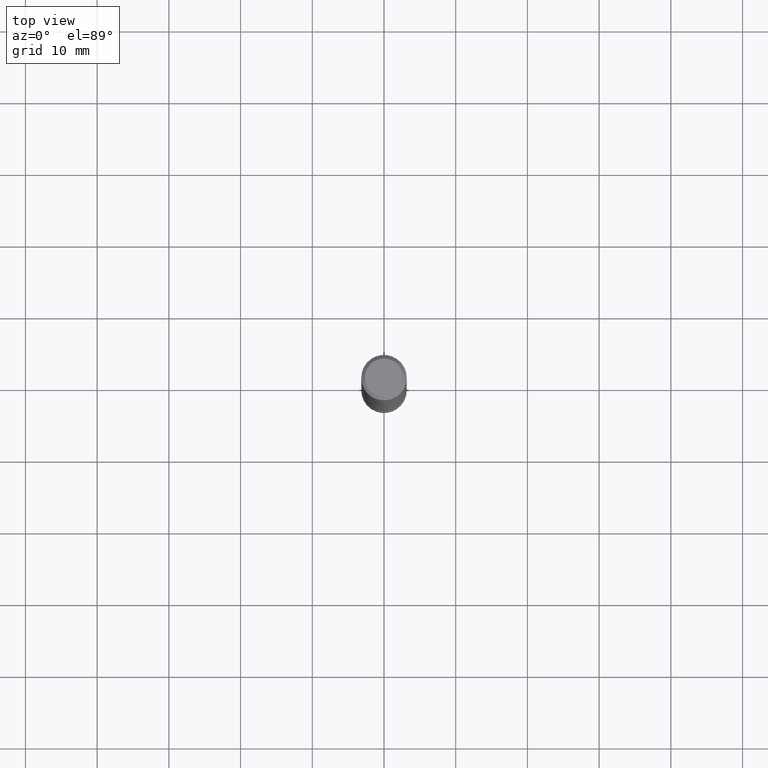
[diagram: clean part render]
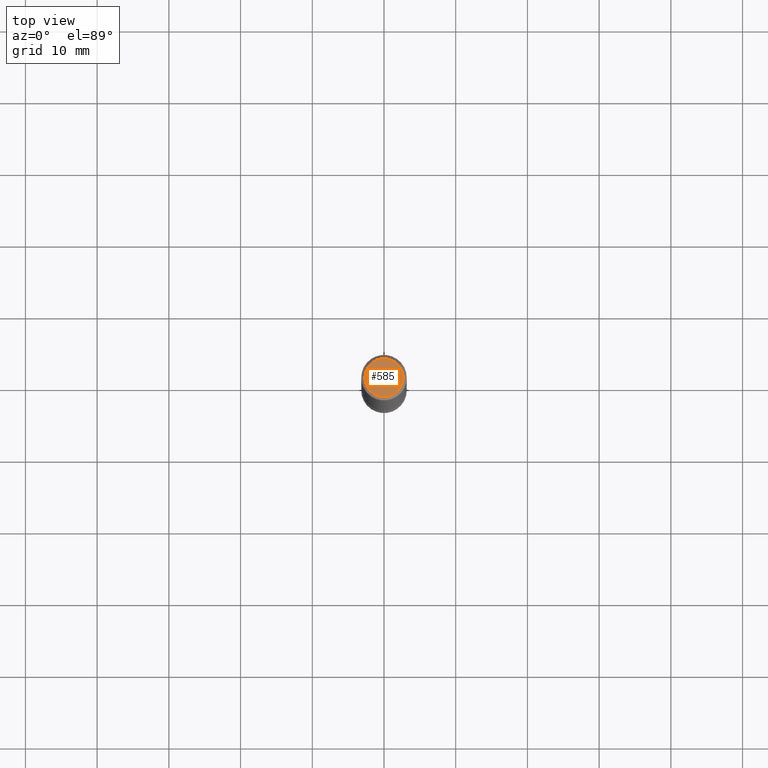
[diagram: same view with one face highlighted and labeled with its STEP entity id]
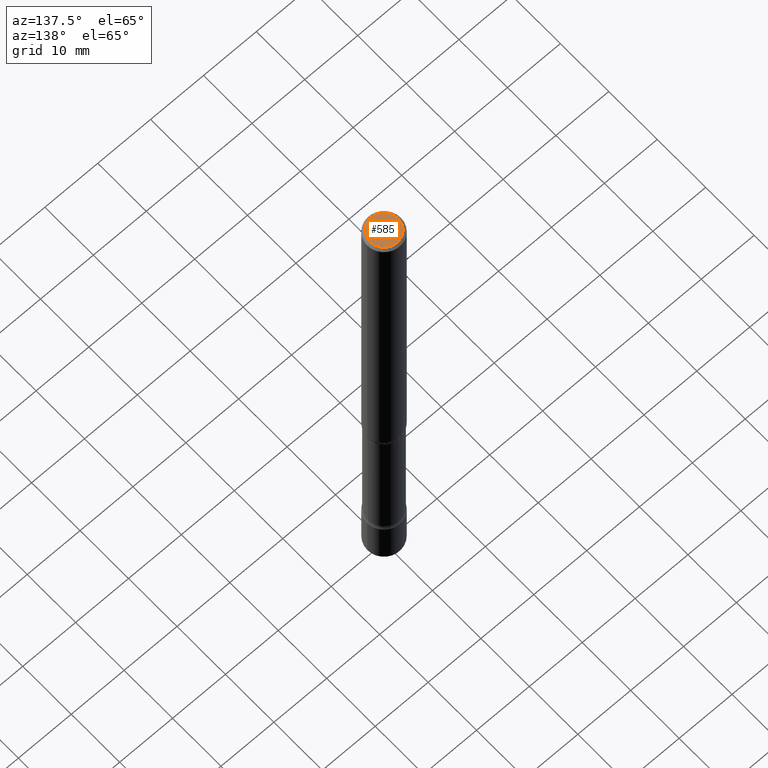
[diagram: same view with one face highlighted and labeled with its STEP entity id]
A machine part, top view. The second image highlights one B-rep face of the part: STEP entity #585.
A second angle (auxiliary view) of the same face is appended — the face is thin or edge-on in the first view.
In plain terms, the highlighted planar face has unit normal (0, -0, -1).
Its self-contained STEP definition (entity closure, byte-faithful):
#21 = EDGE_LOOP ( 'NONE', ( #60, #621 ) ) ;
#60 = ORIENTED_EDGE ( 'NONE', *, *, #86, .T. ) ;
#86 = EDGE_CURVE ( 'NONE', #106, #679, #637, .T. ) ;
#106 = VERTEX_POINT ( 'NONE', #758 ) ;
#193 = EDGE_CURVE ( 'NONE', #679, #106, #614, .T. ) ;
#197 = FACE_OUTER_BOUND ( 'NONE', #21, .T. ) ;
#203 = CARTESIAN_POINT ( 'NONE',  ( 7.332110811570555591E-16, 0.1049999999999996630, -3.644712843334789467E-16 ) ) ;
#216 = CARTESIAN_POINT ( 'NONE',  ( 0.1049999999999996630, -8.238720831321552978E-16, 4.268512490105855498E-18 ) ) ;
#293 = AXIS2_PLACEMENT_3D ( 'NONE', #527, #397, #707 ) ;
#310 = AXIS2_PLACEMENT_3D ( 'NONE', #608, #419, #787 ) ;
#328 = DIRECTION ( 'NONE',  ( 2.438088387897960049E-29, -3.491481338843145188E-15, -1.000000000000000000 ) ) ;
#397 = DIRECTION ( 'NONE',  ( -2.445468806185136597E-29, 3.491481338843145583E-15, 1.000000000000000000 ) ) ;
#419 = DIRECTION ( 'NONE',  ( -2.445468806185136597E-29, 3.491481338843145583E-15, 1.000000000000000000 ) ) ;
#442 = AXIS2_PLACEMENT_3D ( 'NONE', #203, #328, #701 ) ;
#527 = CARTESIAN_POINT ( 'NONE',  ( -1.043851414335219820E-46, 1.490343170380447200E-32, 4.268512490100411279E-18 ) ) ;
#585 = ADVANCED_FACE ( 'NONE', ( #197 ), #689, .F. ) ;
#608 = CARTESIAN_POINT ( 'NONE',  ( -1.043851414335219820E-46, 1.490343170380447200E-32, 4.268512490100411279E-18 ) ) ;
#614 = CIRCLE ( 'NONE', #310, 0.1049999999999996630 ) ;
#621 = ORIENTED_EDGE ( 'NONE', *, *, #193, .T. ) ;
#637 = CIRCLE ( 'NONE', #293, 0.1049999999999996630 ) ;
#679 = VERTEX_POINT ( 'NONE', #216 ) ;
#689 = PLANE ( 'NONE',  #442 ) ;
#701 = DIRECTION ( 'NONE',  ( -1.000000000000000000, 6.982962677686265922E-15, -4.876176775795935793E-29 ) ) ;
#707 = DIRECTION ( 'NONE',  ( 1.000000000000000000, -6.982962677686267499E-15, 4.876206205277409723E-29 ) ) ;
#758 = CARTESIAN_POINT ( 'NONE',  ( -0.1049999999999996630, 7.681258945454869124E-16, 4.268512490095161194E-18 ) ) ;
#787 = DIRECTION ( 'NONE',  ( 1.000000000000000000, -6.982962677686267499E-15, 4.876206205277409723E-29 ) ) ;